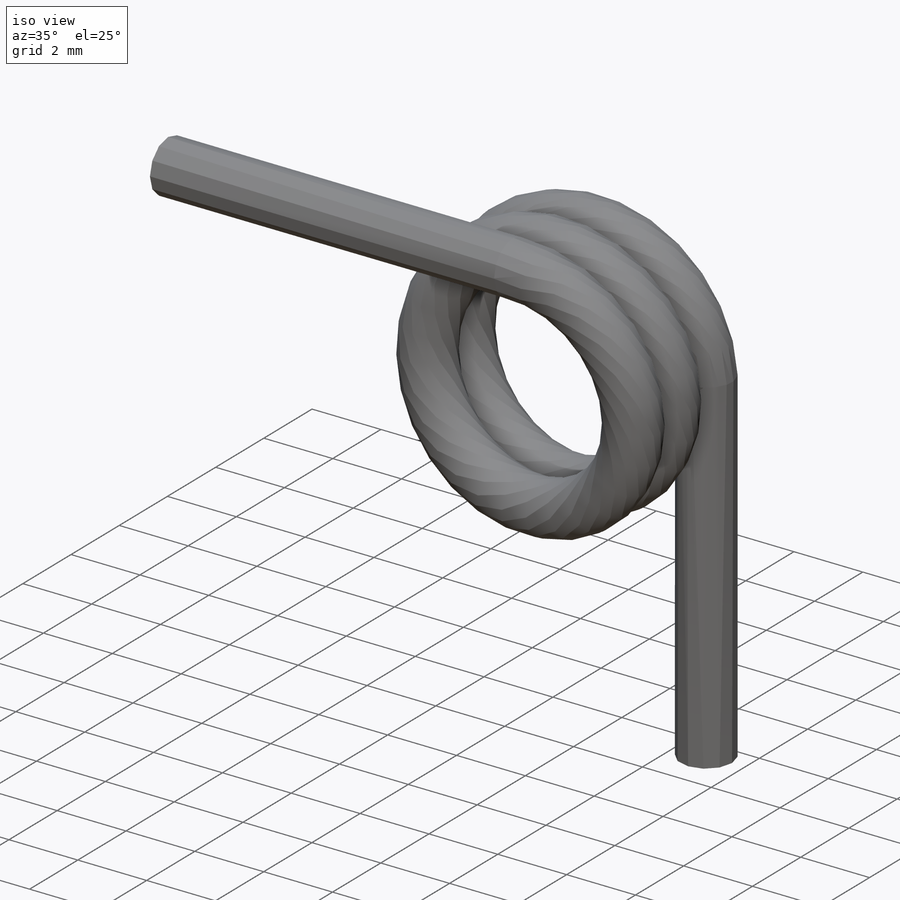
[diagram: iso view]
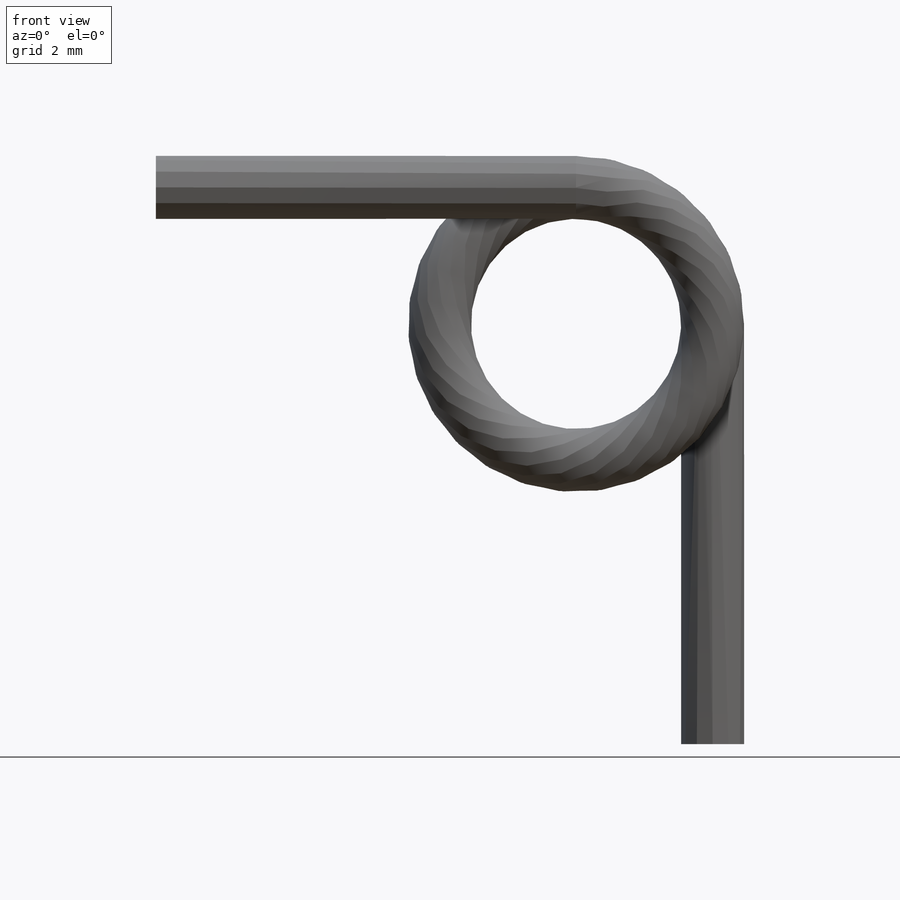
[diagram: front view]
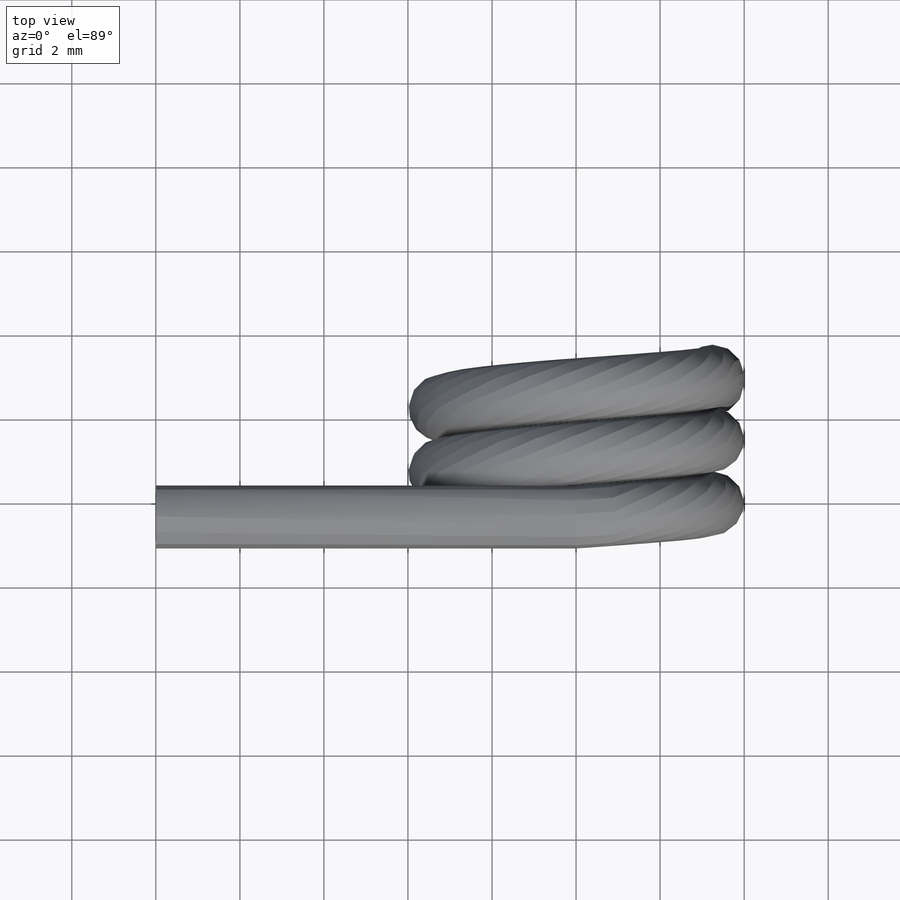
[diagram: top view]
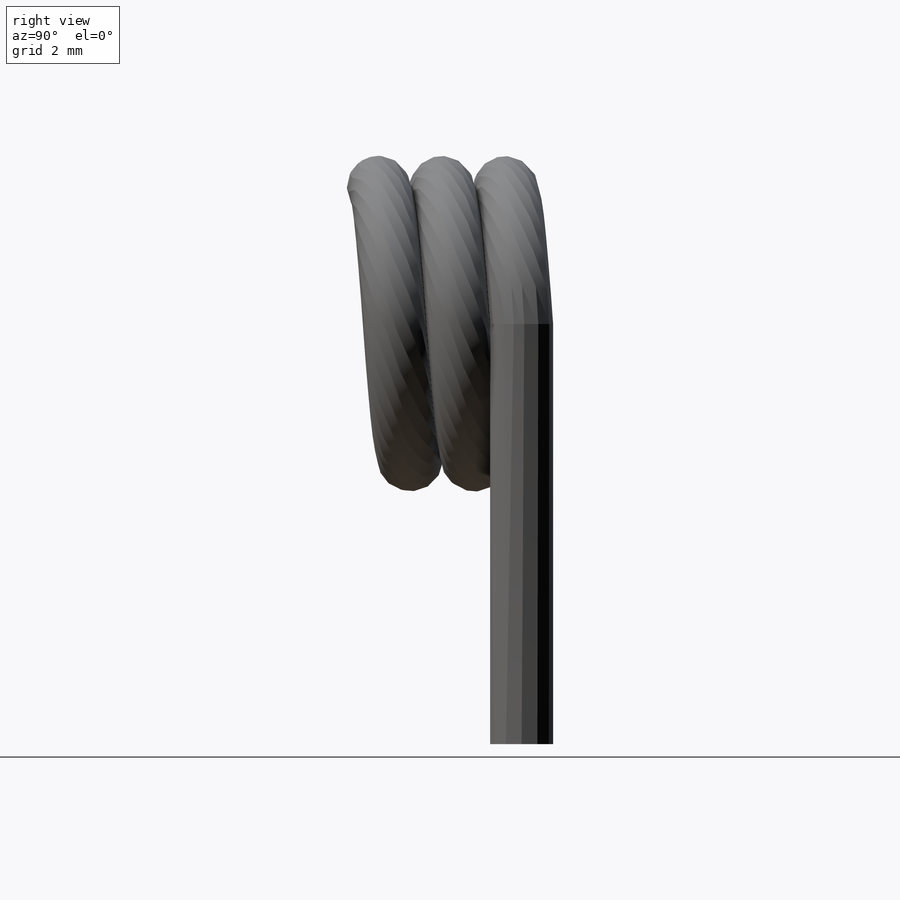
[diagram: right view]
SOLIDWORKS PART (.sldprt)
format: sldprt  version: not decoded by parser v0  size: 375,296 bytes
history: native  units: mm
features: sketch x6, helix x2, sweep x2, extrude x2, material x1 + 1 further entry (+14 scaffold rows collapsed)
feature tree (28):
  scaffold x14  (default folders/planes/origin — collapsed)
  material  "Alloy Steel"
  "Design Table"
  sketch  "Sketch1"  dims[c1.D1=10.0mm c1.D2=~8.464764mm c2.D1=5.7mm c2.D2=0.955mm]
  sketch  "Sketch2"  dims[D1=1.91mm]
  helix  "Helix/Spiral1"  Pitch=5.7873mm
  sweep  "Sweep1"
  sketch  "Sketch3"  dims[D1=0.0mm]
  helix  "Helix/Spiral2"  Pitch=1.446825mm
  sketch  "Sketch4"
  sweep  "Cut-Sweep1"
  sketch  "Sketch5"
  extrude  "Boss-Extrude1"  Depth=10mm
  sketch  "Sketch6"
  extrude  "Boss-Extrude2"  Depth=10mm
decode coverage: 7 of 12 modeling features carry decoded parameters; 1 rows unclassified (native names shown)
note: ~ marks probable driven/reference dimensions
note: suppression state not decoded; provenance and decode notes live in map.json
